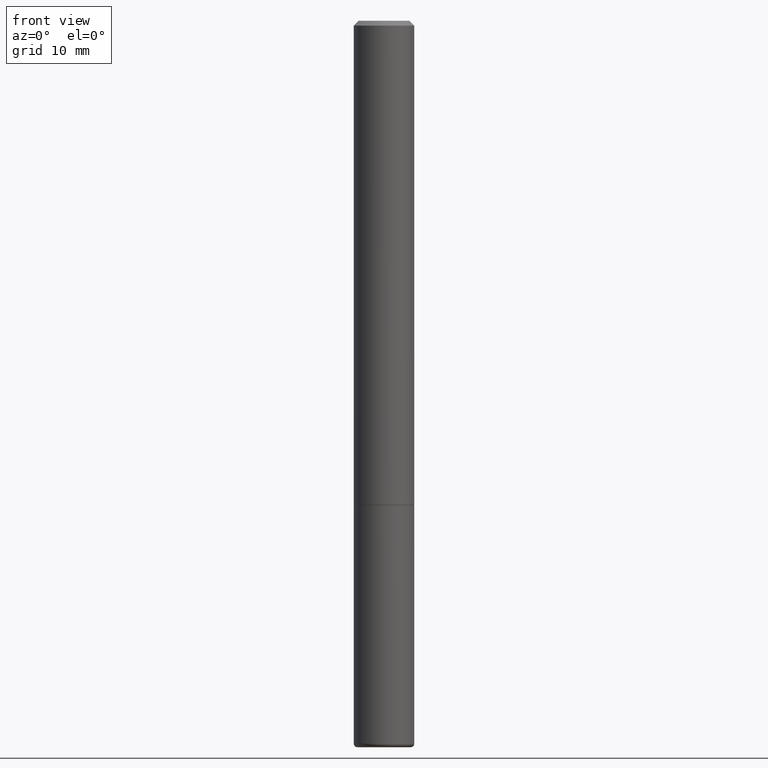
[diagram: clean part render]
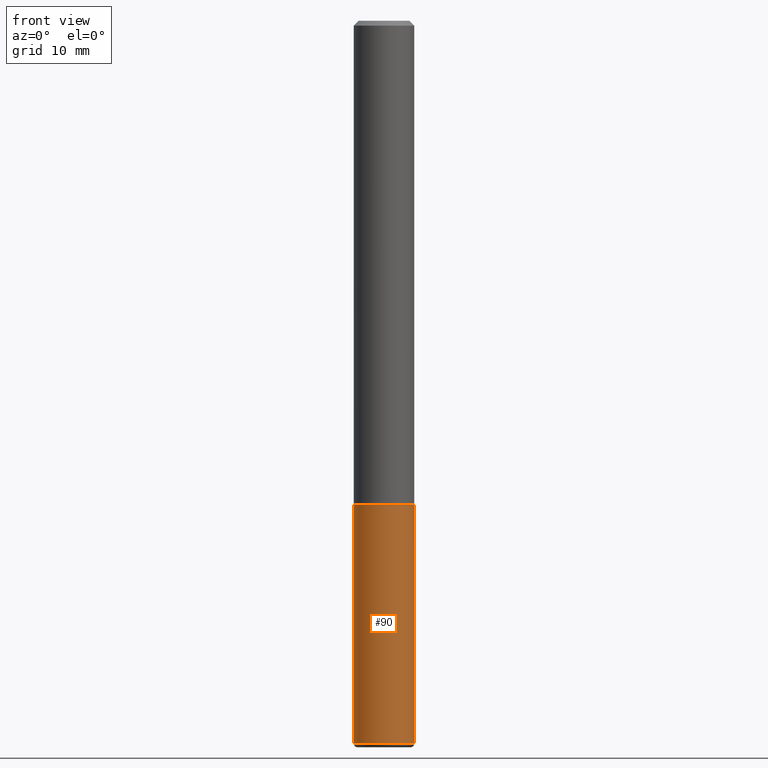
[diagram: same view with one face highlighted and labeled with its STEP entity id]
A machine part, front view. The second image highlights one B-rep face of the part: STEP entity #90.
In plain terms, the highlighted cylindrical surface (edge-blend (fillet) strip) has radius 3.175 mm, axis along (-0, 0, 1).
Its self-contained STEP definition (entity closure, byte-faithful):
#16 = DIRECTION ( 'NONE',  ( 1.000000000000000000, -6.982962677686267499E-15, 4.876176775795935793E-29 ) ) ;
#26 = VECTOR ( 'NONE', #454, 39.37007874015748143 ) ;
#37 = DIRECTION ( 'NONE',  ( 1.000000000000000000, -6.982962677686269077E-15, 0.000000000000000000 ) ) ;
#40 = DIRECTION ( 'NONE',  ( -2.445468806185136597E-29, 3.491481338843145583E-15, 1.000000000000000000 ) ) ;
#43 = VERTEX_POINT ( 'NONE', #173 ) ;
#48 = CARTESIAN_POINT ( 'NONE',  ( 0.1250000000000000278, -7.855833012397075293E-15, -2.000000000000000444 ) ) ;
#86 = DIRECTION ( 'NONE',  ( -2.445468806185136877E-29, 3.491481338843145188E-15, 1.000000000000000000 ) ) ;
#90 = ADVANCED_FACE ( 'NONE', ( #315 ), #478, .T. ) ;
#92 = LINE ( 'NONE', #121, #402 ) ;
#121 = CARTESIAN_POINT ( 'NONE',  ( 0.1250000000000000278, -8.728703347107836346E-16, 6.095220969744921142E-30 ) ) ;
#123 = ORIENTED_EDGE ( 'NONE', *, *, #435, .T. ) ;
#161 = EDGE_LOOP ( 'NONE', ( #470, #316, #123, #233 ) ) ;
#163 = AXIS2_PLACEMENT_3D ( 'NONE', #474, #271, #16 ) ;
#173 = CARTESIAN_POINT ( 'NONE',  ( -0.1250000000000000278, -7.814339814453245950E-15, -2.000000000000000444 ) ) ;
#179 = EDGE_CURVE ( 'NONE', #259, #43, #293, .T. ) ;
#192 = DIRECTION ( 'NONE',  ( 1.000000000000000000, -6.982962677686261189E-15, 0.000000000000000000 ) ) ;
#216 = CARTESIAN_POINT ( 'NONE',  ( -0.1250000000000000278, 8.881784197001254296E-16, -6.148668862818634329E-30 ) ) ;
#233 = ORIENTED_EDGE ( 'NONE', *, *, #380, .F. ) ;
#248 = CIRCLE ( 'NONE', #483, 0.1250000000000000278 ) ;
#259 = VERTEX_POINT ( 'NONE', #492 ) ;
#271 = DIRECTION ( 'NONE',  ( -2.445468806185136597E-29, 3.491481338843145583E-15, 1.000000000000000000 ) ) ;
#293 = LINE ( 'NONE', #216, #26 ) ;
#304 = DIRECTION ( 'NONE',  ( -2.445468806185136597E-29, 3.491481338843145583E-15, 1.000000000000000000 ) ) ;
#305 = VERTEX_POINT ( 'NONE', #430 ) ;
#315 = FACE_OUTER_BOUND ( 'NONE', #161, .T. ) ;
#316 = ORIENTED_EDGE ( 'NONE', *, *, #413, .T. ) ;
#357 = CIRCLE ( 'NONE', #426, 0.1250000000000000278 ) ;
#380 = EDGE_CURVE ( 'NONE', #43, #463, #248, .T. ) ;
#402 = VECTOR ( 'NONE', #86, 39.37007874015748143 ) ;
#413 = EDGE_CURVE ( 'NONE', #259, #305, #357, .T. ) ;
#423 = CARTESIAN_POINT ( 'NONE',  ( 4.890937612370273754E-29, -6.982962677686291954E-15, -2.000000000000000444 ) ) ;
#426 = AXIS2_PLACEMENT_3D ( 'NONE', #458, #40, #192 ) ;
#430 = CARTESIAN_POINT ( 'NONE',  ( 0.1250000000000000278, -1.129494412533123533E-14, -2.985000571154037274 ) ) ;
#435 = EDGE_CURVE ( 'NONE', #305, #463, #92, .T. ) ;
#454 = DIRECTION ( 'NONE',  ( -2.445468806185136877E-29, 3.491481338843145188E-15, 1.000000000000000000 ) ) ;
#458 = CARTESIAN_POINT ( 'NONE',  ( 7.299725783202013722E-29, -1.042207379062045199E-14, -2.985000571154037274 ) ) ;
#463 = VERTEX_POINT ( 'NONE', #48 ) ;
#470 = ORIENTED_EDGE ( 'NONE', *, *, #179, .F. ) ;
#474 = CARTESIAN_POINT ( 'NONE',  ( 0.000000000000000000, 0.000000000000000000, 0.000000000000000000 ) ) ;
#478 = CYLINDRICAL_SURFACE ( 'NONE', #163, 0.1250000000000000278 ) ;
#483 = AXIS2_PLACEMENT_3D ( 'NONE', #423, #304, #37 ) ;
#492 = CARTESIAN_POINT ( 'NONE',  ( -0.1250000000000000278, -7.814339814453245950E-15, -2.985000571154037274 ) ) ;